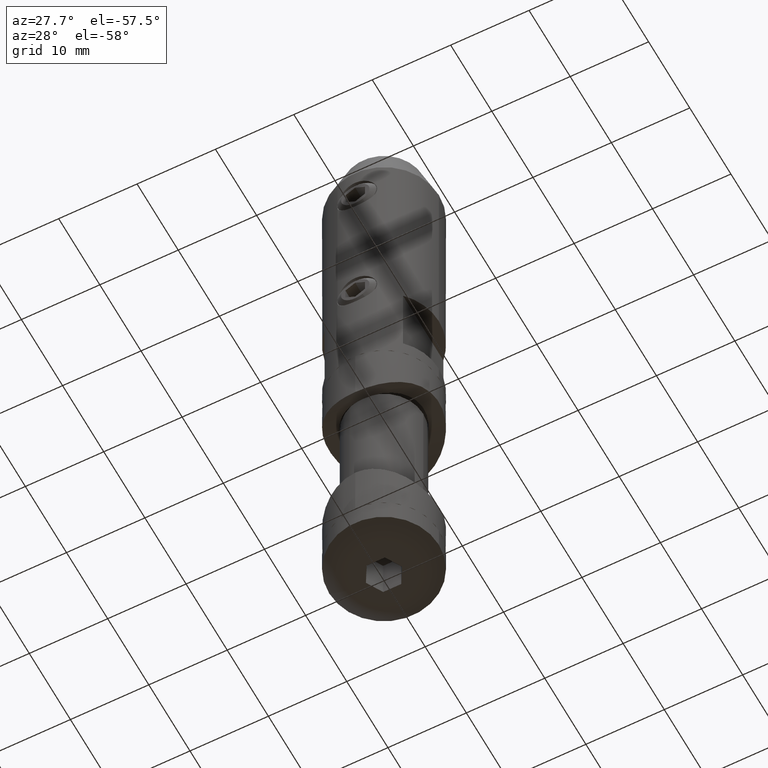
[diagram: clean part render]
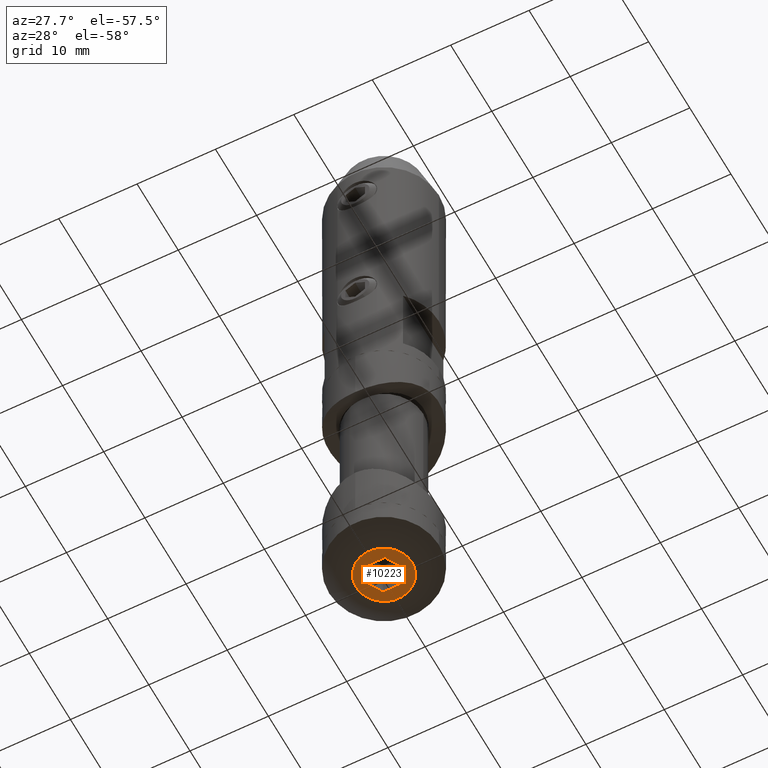
[diagram: same view with one face highlighted and labeled with its STEP entity id]
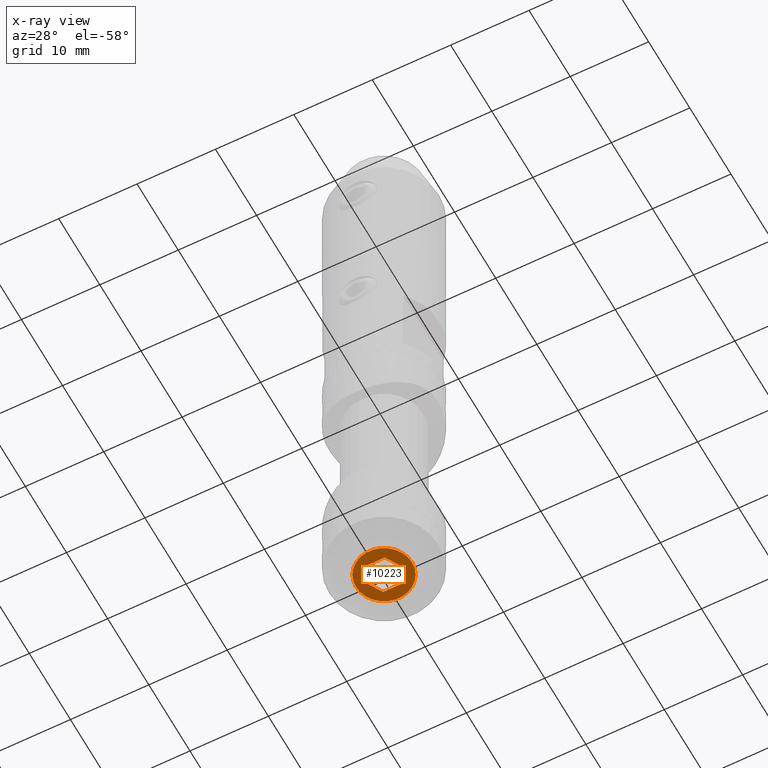
[diagram: x-ray of the same camera — body ghosted, the highlighted face saturated]
A machine part, auxiliary view. The second image highlights one B-rep face of the part: STEP entity #10223.
The next image is the same camera in x-ray: the body ghosted, the highlighted face saturated — about 0% of this face is hidden behind the body in this view.
In plain terms, the highlighted planar face has unit normal (0, 0, -1).
Its self-contained STEP definition (entity closure, byte-faithful):
#11 = CARTESIAN_POINT ( 'NONE',  ( 3.570714360103545371, 0.000000000000000000, -17.69999999999999929 ) ) ;
#373 = VERTEX_POINT ( 'NONE', #11 ) ;
#381 = CARTESIAN_POINT ( 'NONE',  ( -1.154700538379251240, 2.000000000000000444, -17.69999999999999929 ) ) ;
#723 = LINE ( 'NONE', #16804, #19080 ) ;
#741 = FACE_OUTER_BOUND ( 'NONE', #12447, .T. ) ;
#969 = ORIENTED_EDGE ( 'NONE', *, *, #13400, .F. ) ;
#1047 = AXIS2_PLACEMENT_3D ( 'NONE', #3600, #5272, #6766 ) ;
#1128 = EDGE_CURVE ( 'NONE', #17773, #16580, #6106, .T. ) ;
#1384 = DIRECTION ( 'NONE',  ( -0.5000000000000002220, -0.8660254037844384856, 0.000000000000000000 ) ) ;
#2991 = DIRECTION ( 'NONE',  ( 0.5000000000000000000, -0.8660254037844385966, 0.000000000000000000 ) ) ;
#3208 = ORIENTED_EDGE ( 'NONE', *, *, #19279, .F. ) ;
#3209 = FACE_BOUND ( 'NONE', #14244, .T. ) ;
#3600 = CARTESIAN_POINT ( 'NONE',  ( 0.000000000000000000, 0.000000000000000000, -17.69999999999999929 ) ) ;
#3990 = VERTEX_POINT ( 'NONE', #15952 ) ;
#4278 = ORIENTED_EDGE ( 'NONE', *, *, #1128, .F. ) ;
#4504 = CARTESIAN_POINT ( 'NONE',  ( 1.154700538379251240, -1.999999999999999556, -17.69999999999999929 ) ) ;
#4707 = CARTESIAN_POINT ( 'NONE',  ( -2.309401076758503812, -2.168404344971008868E-16, -17.69999999999999929 ) ) ;
#5272 = DIRECTION ( 'NONE',  ( -0.000000000000000000, -0.000000000000000000, 1.000000000000000000 ) ) ;
#5301 = CARTESIAN_POINT ( 'NONE',  ( 0.000000000000000000, 0.000000000000000000, -17.69999999999999929 ) ) ;
#5392 = DIRECTION ( 'NONE',  ( 0.000000000000000000, 0.000000000000000000, -1.000000000000000000 ) ) ;
#6106 = LINE ( 'NONE', #6165, #18067 ) ;
#6165 = CARTESIAN_POINT ( 'NONE',  ( 2.309401076758503368, -1.665055585136554276E-17, -17.69999999999999929 ) ) ;
#6175 = LINE ( 'NONE', #381, #17868 ) ;
#6766 = DIRECTION ( 'NONE',  ( 1.000000000000000000, 0.000000000000000000, 0.000000000000000000 ) ) ;
#6777 = ORIENTED_EDGE ( 'NONE', *, *, #14025, .F. ) ;
#6828 = EDGE_CURVE ( 'NONE', #15209, #19211, #9881, .T. ) ;
#6936 = CARTESIAN_POINT ( 'NONE',  ( 0.000000000000000000, 0.000000000000000000, -17.69999999999999929 ) ) ;
#7462 = DIRECTION ( 'NONE',  ( 0.5000000000000001110, 0.8660254037844384856, 0.000000000000000000 ) ) ;
#7530 = CARTESIAN_POINT ( 'NONE',  ( 1.154700538379251684, 2.000000000000000000, -17.69999999999999929 ) ) ;
#7629 = EDGE_CURVE ( 'NONE', #18302, #373, #14979, .T. ) ;
#7708 = AXIS2_PLACEMENT_3D ( 'NONE', #5301, #17761, #12943 ) ;
#8368 = AXIS2_PLACEMENT_3D ( 'NONE', #6936, #5392, #13157 ) ;
#8559 = CARTESIAN_POINT ( 'NONE',  ( -1.154700538379252794, -1.999999999999999556, -17.69999999999999929 ) ) ;
#8892 = ORIENTED_EDGE ( 'NONE', *, *, #6828, .F. ) ;
#9077 = CIRCLE ( 'NONE', #1047, 3.570714360103545371 ) ;
#9333 = ORIENTED_EDGE ( 'NONE', *, *, #13431, .F. ) ;
#9881 = LINE ( 'NONE', #15442, #13330 ) ;
#10223 = ADVANCED_FACE ( 'NONE', ( #3209, #741 ), #16256, .T. ) ;
#10467 = VERTEX_POINT ( 'NONE', #16869 ) ;
#10799 = VECTOR ( 'NONE', #2991, 1000.000000000000227 ) ;
#11350 = DIRECTION ( 'NONE',  ( -1.000000000000000000, 0.000000000000000000, 0.000000000000000000 ) ) ;
#12283 = VECTOR ( 'NONE', #11350, 1000.000000000000000 ) ;
#12447 = EDGE_LOOP ( 'NONE', ( #6777, #13980 ) ) ;
#12530 = LINE ( 'NONE', #7530, #10799 ) ;
#12943 = DIRECTION ( 'NONE',  ( 1.000000000000000000, 0.000000000000000000, 0.000000000000000000 ) ) ;
#13157 = DIRECTION ( 'NONE',  ( -1.000000000000000000, 0.000000000000000000, -0.000000000000000000 ) ) ;
#13330 = VECTOR ( 'NONE', #18698, 1000.000000000000000 ) ;
#13400 = EDGE_CURVE ( 'NONE', #19211, #10467, #723, .T. ) ;
#13431 = EDGE_CURVE ( 'NONE', #16580, #15209, #15134, .T. ) ;
#13980 = ORIENTED_EDGE ( 'NONE', *, *, #7629, .F. ) ;
#14025 = EDGE_CURVE ( 'NONE', #373, #18302, #9077, .T. ) ;
#14163 = CARTESIAN_POINT ( 'NONE',  ( -3.570714360103545371, 6.472695752900883550E-16, -17.69999999999999929 ) ) ;
#14244 = EDGE_LOOP ( 'NONE', ( #8892, #9333, #4278, #18931, #3208, #969 ) ) ;
#14561 = DIRECTION ( 'NONE',  ( 1.000000000000000000, -1.877893248421449775E-16, 0.000000000000000000 ) ) ;
#14979 = CIRCLE ( 'NONE', #7708, 3.570714360103545371 ) ;
#15134 = LINE ( 'NONE', #19258, #12283 ) ;
#15209 = VERTEX_POINT ( 'NONE', #8559 ) ;
#15331 = CARTESIAN_POINT ( 'NONE',  ( 2.309401076758503368, -1.665055585136554276E-17, -17.69999999999999929 ) ) ;
#15442 = CARTESIAN_POINT ( 'NONE',  ( -1.154700538379252794, -1.999999999999999556, -17.69999999999999929 ) ) ;
#15952 = CARTESIAN_POINT ( 'NONE',  ( 1.154700538379251684, 2.000000000000000000, -17.69999999999999929 ) ) ;
#16256 = PLANE ( 'NONE',  #8368 ) ;
#16580 = VERTEX_POINT ( 'NONE', #4504 ) ;
#16804 = CARTESIAN_POINT ( 'NONE',  ( -2.309401076758503812, -4.522388937143589984E-16, -17.69999999999999929 ) ) ;
#16869 = CARTESIAN_POINT ( 'NONE',  ( -1.154700538379251240, 2.000000000000000444, -17.69999999999999929 ) ) ;
#17761 = DIRECTION ( 'NONE',  ( -0.000000000000000000, -0.000000000000000000, 1.000000000000000000 ) ) ;
#17773 = VERTEX_POINT ( 'NONE', #15331 ) ;
#17868 = VECTOR ( 'NONE', #14561, 1000.000000000000000 ) ;
#18067 = VECTOR ( 'NONE', #1384, 1000.000000000000227 ) ;
#18302 = VERTEX_POINT ( 'NONE', #14163 ) ;
#18698 = DIRECTION ( 'NONE',  ( -0.4999999999999998890, 0.8660254037844387076, 0.000000000000000000 ) ) ;
#18931 = ORIENTED_EDGE ( 'NONE', *, *, #19487, .F. ) ;
#19080 = VECTOR ( 'NONE', #7462, 1000.000000000000227 ) ;
#19211 = VERTEX_POINT ( 'NONE', #4707 ) ;
#19258 = CARTESIAN_POINT ( 'NONE',  ( 1.154700538379251240, -1.999999999999999556, -17.69999999999999929 ) ) ;
#19279 = EDGE_CURVE ( 'NONE', #10467, #3990, #6175, .T. ) ;
#19487 = EDGE_CURVE ( 'NONE', #3990, #17773, #12530, .T. ) ;